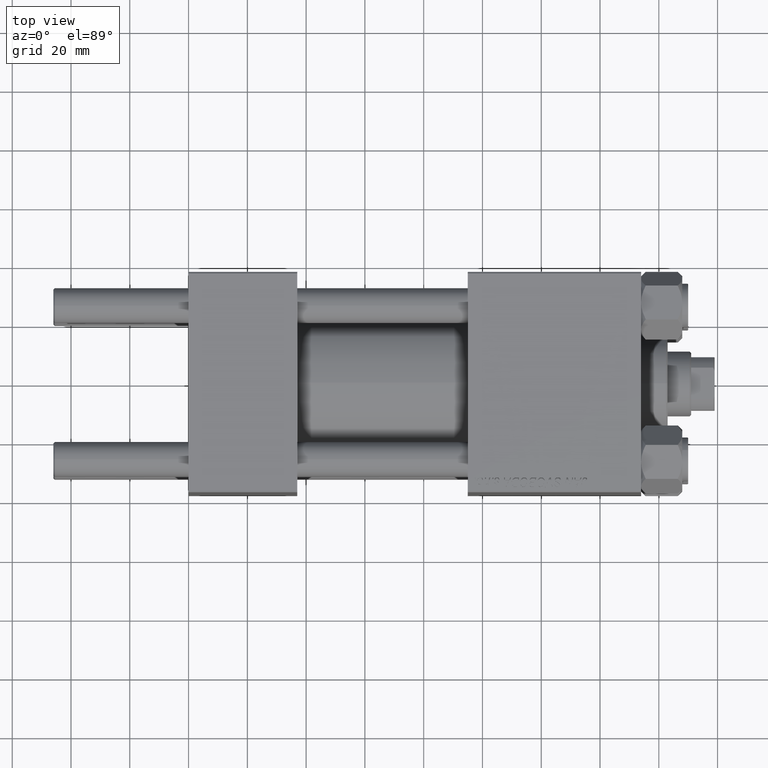
[diagram: clean part render]
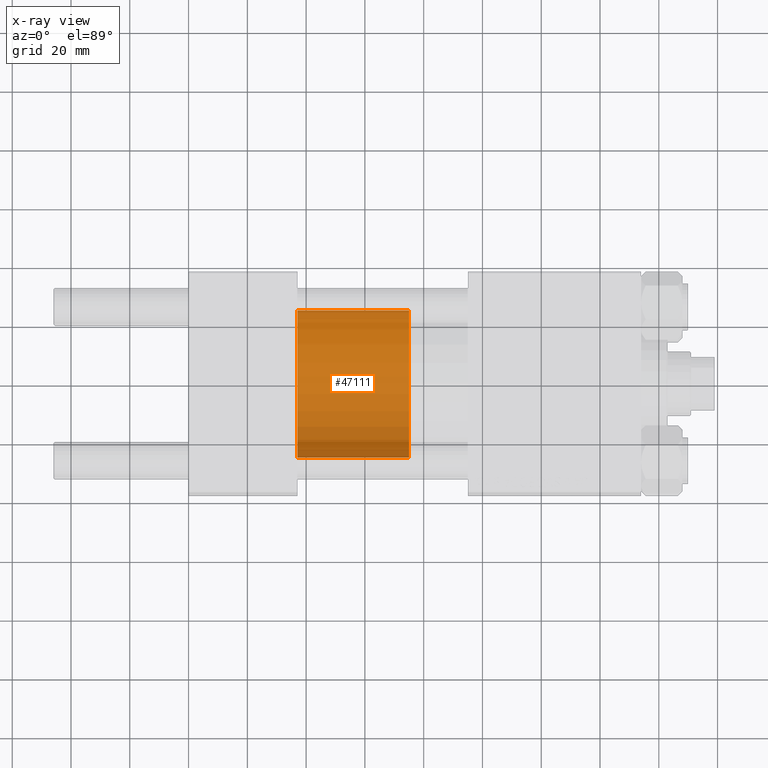
[diagram: x-ray — body ghosted, one internal face saturated and labeled with its STEP entity id]
A machine part, top view, then the same camera in x-ray: the body is ghosted and one INTERNAL B-rep face — a face not visible from any outside direction — is saturated and labeled: STEP entity #47111.
In plain terms, the highlighted cylindrical surface (partial cylindrical patch) has radius 25 mm, axis along (-1, 0, 0).
Its self-contained STEP definition (entity closure, byte-faithful):
#558 = DIRECTION ( 'NONE',  ( -0.000000000000000000, -0.000000000000000000, -1.000000000000000000 ) ) ;
#624 = ORIENTED_EDGE ( 'NONE', *, *, #10354, .F. ) ;
#4504 = LINE ( 'NONE', #28038, #46965 ) ;
#4601 = EDGE_CURVE ( 'NONE', #19007, #26196, #41383, .T. ) ;
#6703 = CIRCLE ( 'NONE', #24467, 25.00000000000000000 ) ;
#7029 = EDGE_CURVE ( 'NONE', #28353, #22114, #4504, .T. ) ;
#7395 = EDGE_CURVE ( 'NONE', #26196, #22114, #30010, .T. ) ;
#10354 = EDGE_CURVE ( 'NONE', #19007, #28353, #6703, .T. ) ;
#11706 = DIRECTION ( 'NONE',  ( 1.000000000000000000, 0.000000000000000000, 0.000000000000000000 ) ) ;
#11972 = DIRECTION ( 'NONE',  ( -1.000000000000000000, 0.000000000000000000, 0.000000000000000000 ) ) ;
#12619 = CARTESIAN_POINT ( 'NONE',  ( -25.00000000000000000, 0.000000000000000000, 0.000000000000000000 ) ) ;
#14465 = ORIENTED_EDGE ( 'NONE', *, *, #4601, .T. ) ;
#14896 = ORIENTED_EDGE ( 'NONE', *, *, #7029, .F. ) ;
#16422 = DIRECTION ( 'NONE',  ( -0.000000000000000000, -0.000000000000000000, -1.000000000000000000 ) ) ;
#18386 = CARTESIAN_POINT ( 'NONE',  ( 25.00000000000000000, 3.061616997868383043E-15, 38.00000000000000000 ) ) ;
#19007 = VERTEX_POINT ( 'NONE', #36696 ) ;
#19502 = AXIS2_PLACEMENT_3D ( 'NONE', #19530, #30900, #22587 ) ;
#19530 = CARTESIAN_POINT ( 'NONE',  ( 0.000000000000000000, 0.000000000000000000, 0.000000000000000000 ) ) ;
#19922 = ORIENTED_EDGE ( 'NONE', *, *, #7395, .T. ) ;
#22114 = VERTEX_POINT ( 'NONE', #12619 ) ;
#22587 = DIRECTION ( 'NONE',  ( 1.000000000000000000, 0.000000000000000000, 0.000000000000000000 ) ) ;
#22878 = CYLINDRICAL_SURFACE ( 'NONE', #46835, 25.00000000000000000 ) ;
#23104 = CARTESIAN_POINT ( 'NONE',  ( 0.000000000000000000, 0.000000000000000000, 38.00000000000000000 ) ) ;
#24467 = AXIS2_PLACEMENT_3D ( 'NONE', #23104, #42307, #11706 ) ;
#26196 = VERTEX_POINT ( 'NONE', #46407 ) ;
#27492 = VECTOR ( 'NONE', #45436, 1000.000000000000000 ) ;
#28038 = CARTESIAN_POINT ( 'NONE',  ( -25.00000000000000000, 0.000000000000000000, 38.00000000000000000 ) ) ;
#28353 = VERTEX_POINT ( 'NONE', #41885 ) ;
#30010 = CIRCLE ( 'NONE', #19502, 25.00000000000000000 ) ;
#30900 = DIRECTION ( 'NONE',  ( 0.000000000000000000, 0.000000000000000000, 1.000000000000000000 ) ) ;
#34975 = CARTESIAN_POINT ( 'NONE',  ( 0.000000000000000000, 0.000000000000000000, 38.00000000000000000 ) ) ;
#35225 = FACE_OUTER_BOUND ( 'NONE', #36618, .T. ) ;
#36618 = EDGE_LOOP ( 'NONE', ( #624, #14465, #19922, #14896 ) ) ;
#36696 = CARTESIAN_POINT ( 'NONE',  ( 25.00000000000000000, 3.061616997868383043E-15, 38.00000000000000000 ) ) ;
#41383 = LINE ( 'NONE', #18386, #27492 ) ;
#41885 = CARTESIAN_POINT ( 'NONE',  ( -25.00000000000000000, 0.000000000000000000, 38.00000000000000000 ) ) ;
#42307 = DIRECTION ( 'NONE',  ( 0.000000000000000000, 0.000000000000000000, 1.000000000000000000 ) ) ;
#45436 = DIRECTION ( 'NONE',  ( -0.000000000000000000, -0.000000000000000000, -1.000000000000000000 ) ) ;
#46407 = CARTESIAN_POINT ( 'NONE',  ( 25.00000000000000000, 3.061616997868383043E-15, 0.000000000000000000 ) ) ;
#46835 = AXIS2_PLACEMENT_3D ( 'NONE', #34975, #558, #11972 ) ;
#46965 = VECTOR ( 'NONE', #16422, 1000.000000000000000 ) ;
#47111 = ADVANCED_FACE ( 'NONE', ( #35225 ), #22878, .T. ) ;